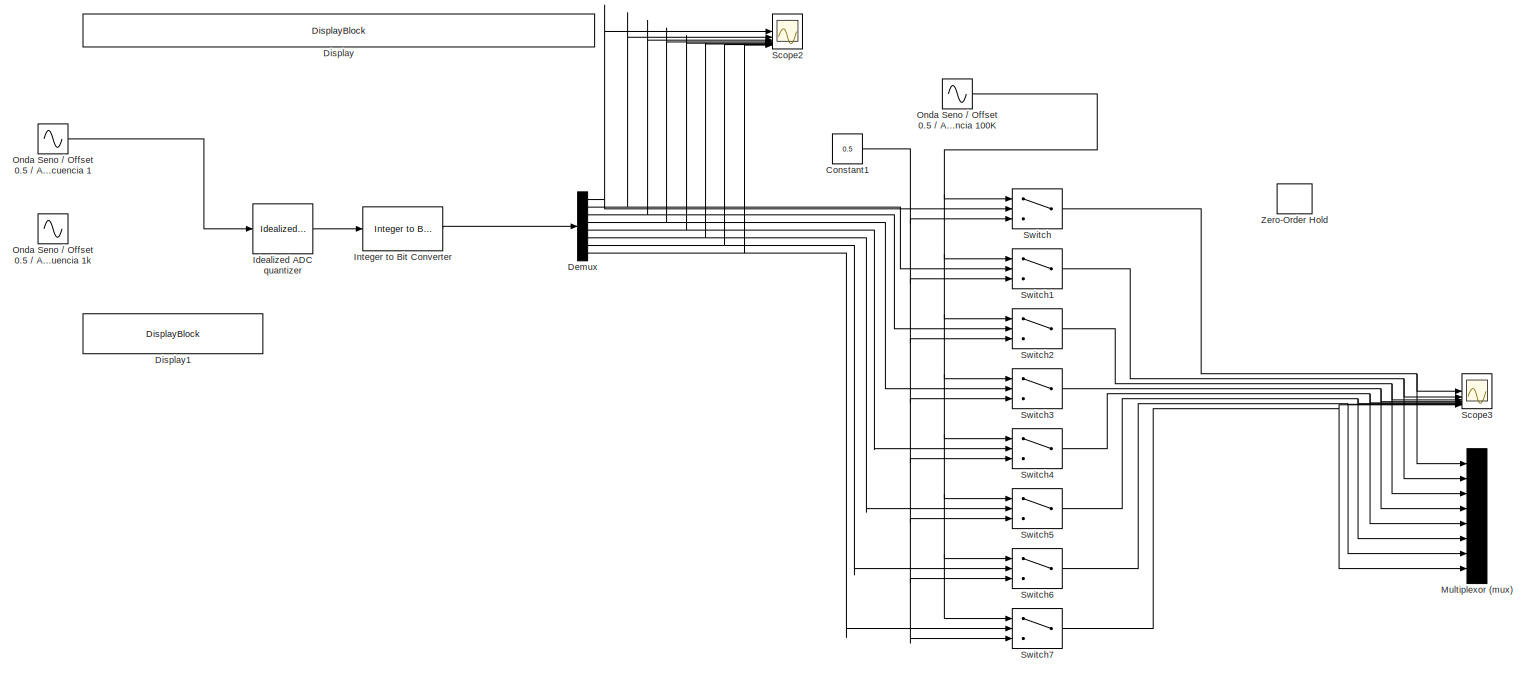
[diagram: root canvas - part 1/3, full width, top band]
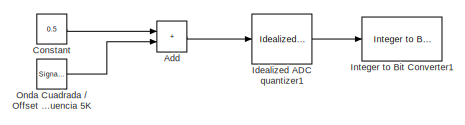
[diagram: root canvas - part 2/3, middle left region]
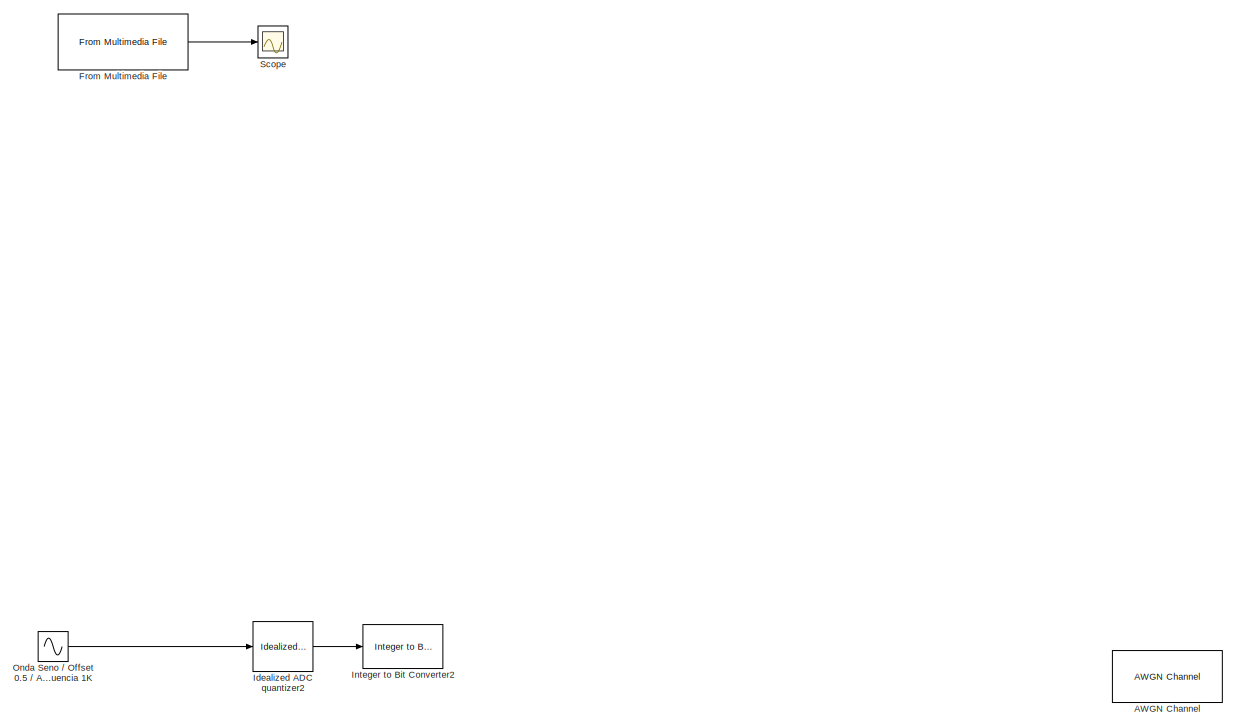
[diagram: root canvas - part 3/3, full width, bottom band]
MODEL slx_5bbc2c5bf5ad
KIND model
CONFIG AbsTol = auto
CONFIG EnableMultiTasking = off
CONFIG FixedStep = auto
CONFIG MaxStep = auto
CONFIG MinStep = auto
CONFIG RelTol = 1e-3
CONFIG SampleTimeConstraint = Unconstrained
CONFIG SolverName = VariableStepAuto
CONFIG StartTime = 0.0
CONFIG StopTime = 0.1
BLOCK [Reference] AWGN Channel  REF=commchan3/AWGN
Channel
  SourceBlock = commchan3/AWGN\nChannel
  SourceType = AWGN Channel
BLOCK [Sum] Add
  IconShape = rectangular
BLOCK [Constant] Constant
  Value = 0.5
BLOCK [Constant] Constant1
  Value = 0.5
BLOCK [Demux] Demux
  Outputs = 8
BLOCK [DisplayBlock] Display
  LabelPosition = Hide
  Layout = Fill available space
  Transparency = 1
BLOCK [DisplayBlock] Display1
  LabelPosition = Hide
  Transparency = 1
BLOCK [Reference] From Multimedia File  REF=dspvision/From Multimedia File
  LibrarySourceBlock = audiosources/From Multimedia File
  SourceBlock = dspvision/From Multimedia File
  SourceType = From Multimedia File
BLOCK [Reference] Idealized ADC quantizer  REF=simulink_extras/Additional
Discrete/Idealized ADC quantizer
  AttributesFormatString = (settings: %<NumberOfConverterBits>-bit converter\nVmin: %<Vmin>, Vmax: %<Vmax>)
  SourceBlock = simulink_extras/Additional\nDiscrete/Idealized ADC quantizer
  SourceType = IdealADC
BLOCK [Reference] Idealized ADC quantizer1  REF=simulink_extras/Additional
Discrete/Idealized ADC quantizer
  AttributesFormatString = (settings: %<NumberOfConverterBits>-bit converter\nVmin: %<Vmin>, Vmax: %<Vmax>)
  SourceBlock = simulink_extras/Additional\nDiscrete/Idealized ADC quantizer
  SourceType = IdealADC
BLOCK [Reference] Idealized ADC quantizer2  REF=simulink_extras/Additional
Discrete/Idealized ADC quantizer
  AttributesFormatString = (settings: %<NumberOfConverterBits>-bit converter\nVmin: %<Vmin>, Vmax: %<Vmax>)
  SourceBlock = simulink_extras/Additional\nDiscrete/Idealized ADC quantizer
  SourceType = IdealADC
BLOCK [Reference] Integer to Bit Converter  REF=simulink/Logic and Bit
Operations/Integer to Bit
Converter
  SourceBlock = simulink/Logic and Bit\nOperations/Integer to Bit\nConverter
  SourceType = Integer to Bit Converter
BLOCK [Reference] Integer to Bit Converter1  REF=simulink/Logic and Bit
Operations/Integer to Bit
Converter
  SourceBlock = simulink/Logic and Bit\nOperations/Integer to Bit\nConverter
  SourceType = Integer to Bit Converter
BLOCK [Reference] Integer to Bit Converter2  REF=simulink/Logic and Bit
Operations/Integer to Bit
Converter
  SourceBlock = simulink/Logic and Bit\nOperations/Integer to Bit\nConverter
  SourceType = Integer to Bit Converter
BLOCK [Mux] Multiplexor (mux)
  DisplayOption = bar
  Inputs = 8
BLOCK [SignalGenerator] Onda Cuadrada // Offset 0.5 // Amplitud 0.5 // Frecuencia 5K
  Amplitude = 0.5
  Frequency = 5000
  WaveForm = square
BLOCK [Sin] Onda Seno // Offset 0.5 // Amplitud 0.5 // Frecuencia 1
  Amplitude = 0.5
  Bias = 0.5
  Frequency = 6.28321853071
  SampleTime = 0
BLOCK [Sin] Onda Seno // Offset 0.5 // Amplitud 0.5 // Frecuencia 100K
  Amplitude = 0.5
  Bias = 0.5
  Frequency = 628318.5307
  SampleTime = 0
BLOCK [Sin] Onda Seno // Offset 0.5 // Amplitud 0.5 // Frecuencia 1K
  Amplitude = 0.5
  Bias = 0.5
  Frequency = 6283.185307
  SampleTime = 0
BLOCK [Sin] Onda Seno // Offset 0.5 // Amplitud 0.5 // Frecuencia 1k
  Amplitude = 0.5
  Bias = 0.5
  Frequency = 628321.853071
  SampleTime = 0
BLOCK [Scope] Scope
  Floating = off
  NumInputPorts = 1
  ScopeSpecificationString = Simulink.scopes.TimeScopeBlockCfg('CurrentConfiguration', extmgr.ConfigurationSet(extmgr.Configuration('Core','General UI',true),extmgr.Configuration('Core','Source UI',true),extmgr.Configuration('Sources','WiredSimulink',true),extmgr.Configuration('Visuals','Time Domain',true,'SerializedDisplays',{struct('MinYLimReal','28.00000','MaxYLimReal','228.00000','YLabelReal','','MinYLimMag','28.00000','M...<+15160ch>
BLOCK [Scope] Scope2
  Floating = off
  NumInputPorts = 8
  ScopeSpecificationString = Simulink.scopes.TimeScopeBlockCfg('CurrentConfiguration', extmgr.ConfigurationSet(extmgr.Configuration('Core','General UI',true),extmgr.Configuration('Core','Source UI',true),extmgr.Configuration('Sources','WiredSimulink',true,'DataLoggingVariableName','ScopeData1'),extmgr.Configuration('Visuals','Time Domain',true,'SerializedDisplays',{struct('MinYLimReal','0.00000','MaxYLimReal','1.10121','YLabe...<+7167ch>
BLOCK [Scope] Scope3
  Floating = off
  NumInputPorts = 8
  ScopeSpecificationString = Simulink.scopes.TimeScopeBlockCfg('CurrentConfiguration', extmgr.ConfigurationSet(extmgr.Configuration('Core','General UI',true),extmgr.Configuration('Core','Source UI',true),extmgr.Configuration('Sources','WiredSimulink',true,'DataLoggingVariableName','ScopeData2'),extmgr.Configuration('Visuals','Time Domain',true,'SerializedDisplays',{struct('MinYLimReal','-0.0291','MaxYLimReal','1.00474','YLabe...<+7027ch>
BLOCK [Switch] Switch
  Criteria = u2 > Threshold
  InputSameDT = off
  SaturateOnIntegerOverflow = off
  Threshold = 0.5
BLOCK [Switch] Switch1
  Criteria = u2 > Threshold
  InputSameDT = off
  SaturateOnIntegerOverflow = off
  Threshold = 0.5
BLOCK [Switch] Switch2
  Criteria = u2 > Threshold
  InputSameDT = off
  SaturateOnIntegerOverflow = off
  Threshold = 0.5
BLOCK [Switch] Switch3
  Criteria = u2 > Threshold
  InputSameDT = off
  SaturateOnIntegerOverflow = off
  Threshold = 0.5
BLOCK [Switch] Switch4
  Criteria = u2 > Threshold
  InputSameDT = off
  SaturateOnIntegerOverflow = off
  Threshold = 0.5
BLOCK [Switch] Switch5
  Criteria = u2 > Threshold
  InputSameDT = off
  SaturateOnIntegerOverflow = off
  Threshold = 0.5
BLOCK [Switch] Switch6
  Criteria = u2 > Threshold
  InputSameDT = off
  SaturateOnIntegerOverflow = off
  Threshold = 0.5
BLOCK [Switch] Switch7
  Criteria = u2 > Threshold
  InputSameDT = off
  SaturateOnIntegerOverflow = off
  Threshold = 0.5
BLOCK [ZeroOrderHold] Zero-Order Hold
  SampleTime = -1
LINE Add:1 -> Idealized ADC quantizer1:1
NET Constant1:1 -> Switch1:3, Switch2:3, Switch3:3, Switch4:3, Switch5:3, Switch6:3, Switch7:3, Switch:3
LINE Constant:1 -> Add:1
NET Demux:1 -> Scope2:1, Switch:2
NET Demux:2 -> Scope2:2, Switch1:2
NET Demux:3 -> Scope2:3, Switch2:2
NET Demux:4 -> Scope2:4, Switch3:2
NET Demux:5 -> Scope2:5, Switch4:2
NET Demux:6 -> Scope2:6, Switch5:2
NET Demux:7 -> Scope2:7, Switch6:2
NET Demux:8 -> Scope2:8, Switch7:2
LINE From Multimedia File:1 -> Scope:1
LINE Idealized ADC quantizer1:1 -> Integer to Bit Converter1:1
LINE Idealized ADC quantizer2:1 -> Integer to Bit Converter2:1
LINE Idealized ADC quantizer:1 -> Integer to Bit Converter:1
LINE Integer to Bit Converter:1 -> Demux:1
LINE Onda Cuadrada // Offset 0.5 // Amplitud 0.5 // Frecuencia 5K:1 -> Add:2
NET Onda Seno // Offset 0.5 // Amplitud 0.5 // Frecuencia 100K:1 -> Switch1:1, Switch2:1, Switch3:1, Switch4:1, Switch5:1, Switch6:1, Switch7:1, Switch:1
LINE Onda Seno // Offset 0.5 // Amplitud 0.5 // Frecuencia 1:1 -> Idealized ADC quantizer:1
LINE Onda Seno // Offset 0.5 // Amplitud 0.5 // Frecuencia 1K:1 -> Idealized ADC quantizer2:1
NET Switch1:1 -> Multiplexor (mux):2, Scope3:2
NET Switch2:1 -> Multiplexor (mux):3, Scope3:3
NET Switch3:1 -> Multiplexor (mux):4, Scope3:4
NET Switch4:1 -> Multiplexor (mux):5, Scope3:5
NET Switch5:1 -> Multiplexor (mux):6, Scope3:6
NET Switch6:1 -> Multiplexor (mux):7, Scope3:7
NET Switch7:1 -> Multiplexor (mux):8, Scope3:8
NET Switch:1 -> Multiplexor (mux):1, Scope3:1
note: NET lines group one-source signal fan-out (src -> all destinations, sorted); 1:1 wires keep LINE
